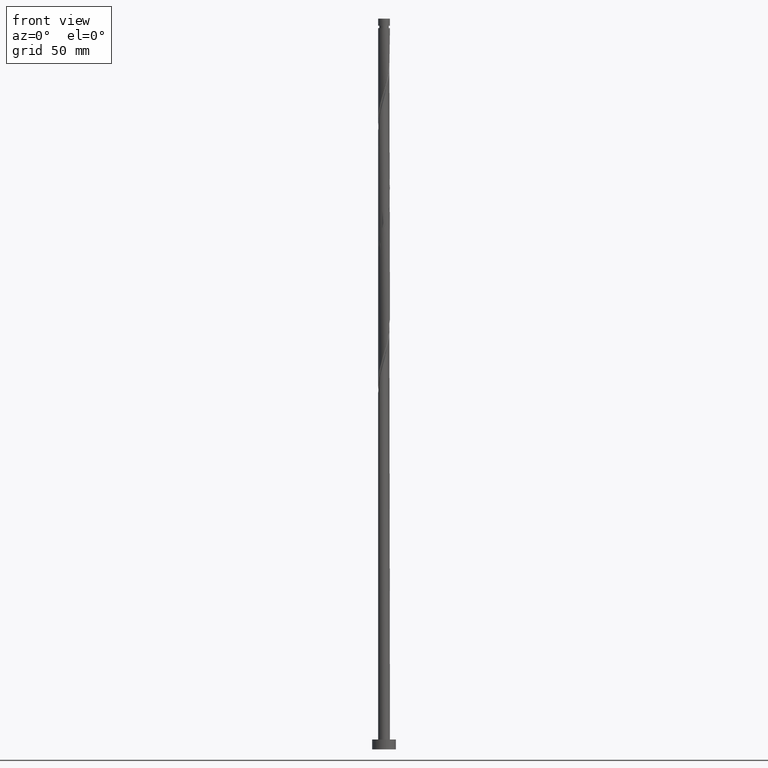
[diagram: clean part render]
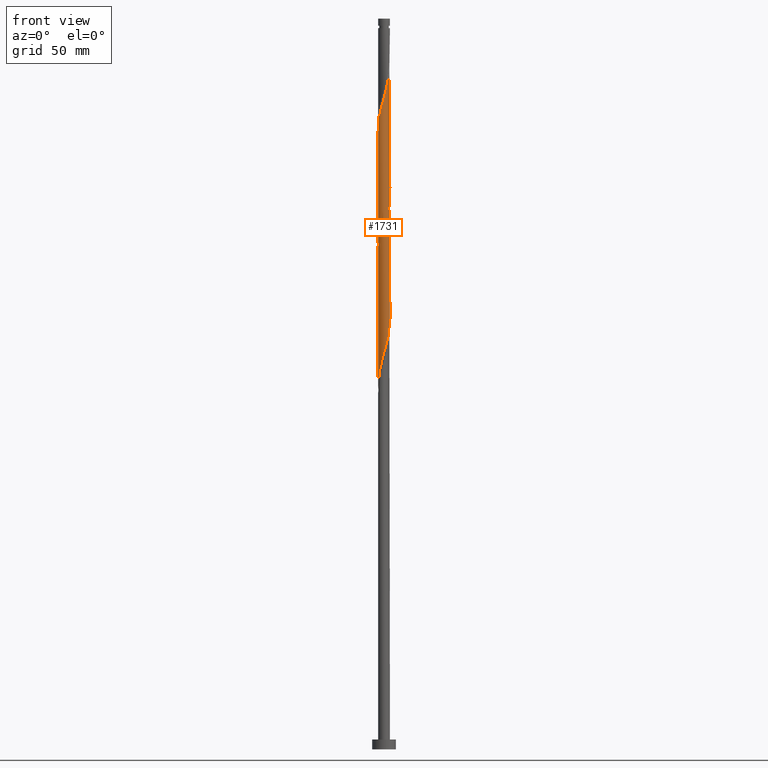
[diagram: same view with one face highlighted and labeled with its STEP entity id]
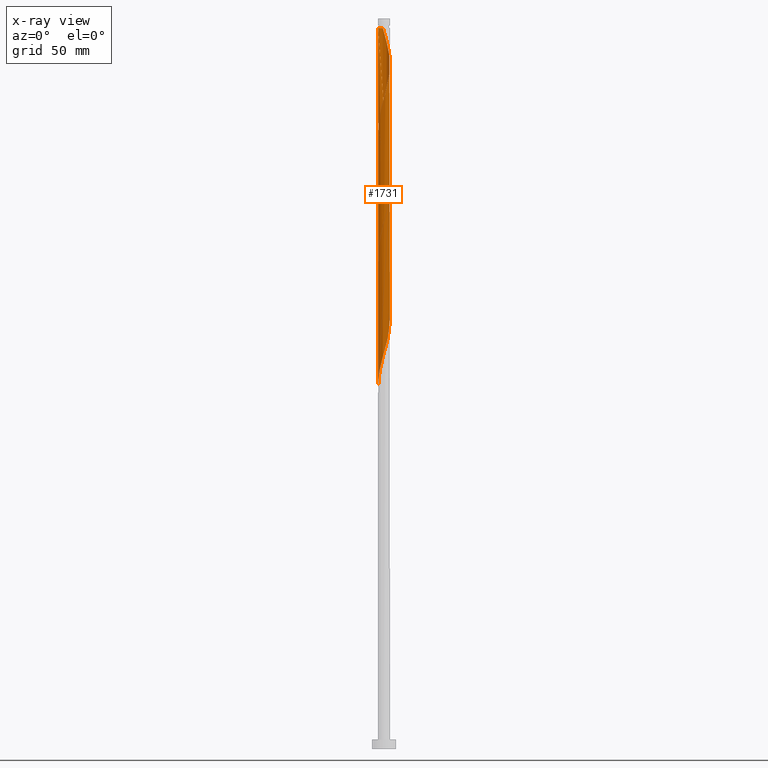
[diagram: x-ray of the same camera — body ghosted, the highlighted face saturated]
A machine part, front view. The second image highlights one B-rep face of the part: STEP entity #1731.
The next image is the same camera in x-ray: the body ghosted, the highlighted face saturated — about 0% of this face is hidden behind the body in this view.
In plain terms, the highlighted cylindrical surface (bore or boss wall) has radius 3 mm, axis along (-0, -0, -1).
Its self-contained STEP definition (entity closure, byte-faithful):
#7 = ORIENTED_EDGE ( 'NONE', *, *, #1015, .F. ) ;
#14 = CARTESIAN_POINT ( 'NONE',  ( 1.195207115623887262, -2.751632233922632675, 334.8271505509903250 ) ) ;
#54 = CARTESIAN_POINT ( 'NONE',  ( 3.000000000000000888, 2.003087666369105967E-15, 284.7303715722896982 ) ) ;
#57 = ORIENTED_EDGE ( 'NONE', *, *, #1578, .T. ) ;
#60 = CARTESIAN_POINT ( 'NONE',  ( -0.3426132633519641257, -2.997004880578674868, 329.2715949954349526 ) ) ;
#74 = CARTESIAN_POINT ( 'NONE',  ( -2.766788993523056739, 1.201790650553047346, 247.0493727732126672 ) ) ;
#75 = CARTESIAN_POINT ( 'NONE',  ( -2.211065689225171660, -2.027606598413809191, 192.6049283287681817 ) ) ;
#80 = CARTESIAN_POINT ( 'NONE',  ( 2.744447700168711535, -1.251970017003503743, 342.6049283287682670 ) ) ;
#82 = CARTESIAN_POINT ( 'NONE',  ( -0.5969924622640976342, 2.940000000000873470, 365.9382616621017519 ) ) ;
#87 = CARTESIAN_POINT ( 'NONE',  ( -1.195207115623887928, -2.751632233922626902, 263.7160394398792960 ) ) ;
#88 = CARTESIAN_POINT ( 'NONE',  ( -0.5969924622639753986, -2.939999999999999503, 199.2715949954348105 ) ) ;
#96 = CARTESIAN_POINT ( 'NONE',  ( 1.741185482790980954, 2.443004935426439150, 228.1604838843237530 ) ) ;
#99 = VERTEX_POINT ( 'NONE', #82 ) ;
#107 = CARTESIAN_POINT ( 'NONE',  ( -3.000000000000000888, -3.303599807966958240E-15, 184.7303715722896982 ) ) ;
#111 = CARTESIAN_POINT ( 'NONE',  ( -2.611625341554437707, 1.476283534877586678, 312.6049283287682101 ) ) ;
#117 = CARTESIAN_POINT ( 'NONE',  ( 2.611625341554437707, -1.476283534877587122, 212.6049283287682101 ) ) ;
#122 = CARTESIAN_POINT ( 'NONE',  ( 2.424175730171095555, 1.795214230025620639, 291.4938172176571243 ) ) ;
#139 = ORIENTED_EDGE ( 'NONE', *, *, #1560, .F. ) ;
#158 = CARTESIAN_POINT ( 'NONE',  ( -2.038775222402708032, -2.223244857174725642, 322.6049283287682670 ) ) ;
#167 = CARTESIAN_POINT ( 'NONE',  ( -2.456461689585825336, -1.750776419202130008, 320.3827061065460384 ) ) ;
#179 = CARTESIAN_POINT ( 'NONE',  ( 2.986297077045553916, 0.2864083930844372738, 348.1604838843237530 ) ) ;
#207 = CARTESIAN_POINT ( 'NONE',  ( -1.997955648279248875, -2.259998966801996634, 260.3827061065460384 ) ) ;
#228 = CARTESIAN_POINT ( 'NONE',  ( 0.3426132633519624604, -2.997004880578670427, 202.6049283287682101 ) ) ;
#231 = CARTESIAN_POINT ( 'NONE',  ( 0.9059989139450662643, 2.877253563794371249, 298.1604838843238099 ) ) ;
#237 = CARTESIAN_POINT ( 'NONE',  ( -0.5969924622639753986, -2.939999999999999503, 265.9382616621014677 ) ) ;
#238 = CARTESIAN_POINT ( 'NONE',  ( 2.247618455994260689, -1.987010638188426048, 210.3827061065459816 ) ) ;
#240 = CARTESIAN_POINT ( 'NONE',  ( 2.980586974261064892, 0.3407363920471027097, 285.9382616621014677 ) ) ;
#241 = CARTESIAN_POINT ( 'NONE',  ( -0.2879860105828837558, 3.002746436205633973, 364.8271505509904955 ) ) ;
#245 = CARTESIAN_POINT ( 'NONE',  ( 1.531984494871650337, -2.598546826576326740, 207.0493727732126956 ) ) ;
#248 = CARTESIAN_POINT ( 'NONE',  ( -1.245111594254570520, 2.729413328510880365, 305.9382616621014677 ) ) ;
#254 = EDGE_CURVE ( 'NONE', #750, #1343, #449, .T. ) ;
#257 = CARTESIAN_POINT ( 'NONE',  ( -2.956194341916738022, 0.6002808636434372458, 315.9382616621015245 ) ) ;
#264 = CARTESIAN_POINT ( 'NONE',  ( 2.986297077045549919, -0.2864083930844409376, 217.0493727732126672 ) ) ;
#267 = CARTESIAN_POINT ( 'NONE',  ( -0.6504259784947260536, 2.928642355512050877, 303.7160394398792391 ) ) ;
#275 = VERTEX_POINT ( 'NONE', #972 ) ;
#282 = DIRECTION ( 'NONE',  ( -0.000000000000000000, -0.000000000000000000, -1.000000000000000000 ) ) ;
#292 = VECTOR ( 'NONE', #609, 1000.000000000000000 ) ;
#300 = CARTESIAN_POINT ( 'NONE',  ( -2.611625341554442148, -1.476283534877588677, 319.2715949954347820 ) ) ;
#330 = EDGE_CURVE ( 'NONE', #275, #99, #1607, .T. ) ;
#344 = CARTESIAN_POINT ( 'NONE',  ( -2.956194341916738022, 0.6002808636434372458, 249.2715949954348673 ) ) ;
#354 = CARTESIAN_POINT ( 'NONE',  ( 2.611625341554437707, -1.476283534877587122, 279.2715949954348389 ) ) ;
#360 = CARTESIAN_POINT ( 'NONE',  ( 3.016399812174366701, -0.02746407747455959295, 347.0493727732126672 ) ) ;
#366 = CARTESIAN_POINT ( 'NONE',  ( -1.785379858637177186, 2.410895841875524859, 241.4938172176570674 ) ) ;
#367 = CARTESIAN_POINT ( 'NONE',  ( 2.766788993523056295, -1.201790650553048900, 213.7160394398792960 ) ) ;
#371 = CARTESIAN_POINT ( 'NONE',  ( -0.02731362638453812067, 2.999875658392149536, 301.4938172176571243 ) ) ;
#376 = CARTESIAN_POINT ( 'NONE',  ( 0.5969924622639755096, 2.939999999999999503, 232.6049283287681817 ) ) ;
#377 = CARTESIAN_POINT ( 'NONE',  ( 2.584311715169900658, 1.523592123514560193, 223.7160394398792107 ) ) ;
#379 = CARTESIAN_POINT ( 'NONE',  ( 1.997955648279249319, 2.259998966801996634, 293.7160394398794665 ) ) ;
#385 = CARTESIAN_POINT ( 'NONE',  ( 2.956194341916738022, -0.6002808636434375789, 282.6049283287682670 ) ) ;
#389 = CARTESIAN_POINT ( 'NONE',  ( 1.741185482790980954, 2.443004935426439150, 294.8271505509903818 ) ) ;
#398 = CARTESIAN_POINT ( 'NONE',  ( 2.584311715169900658, 1.523592123514560193, 290.3827061065459816 ) ) ;
#403 = CARTESIAN_POINT ( 'NONE',  ( -1.195207115623887928, -2.751632233922626902, 197.0493727732126388 ) ) ;
#449 =( BOUNDED_CURVE ( )  B_SPLINE_CURVE ( 2, ( #1839, #1271, #1702, #257, #699, #1127, #111, #1428, #1694, #810, #827, #1711, #248, #1684, #267, #521, #371, #1243, #945, #231, #530, #1137, #389, #379, #957, #122, #398, #834, #964, #661, #240, #559, #691 ),
 .UNSPECIFIED., .F., .T. ) 
 B_SPLINE_CURVE_WITH_KNOTS ( ( 3, 2, 2, 2, 2, 2, 2, 2, 2, 2, 2, 2, 2, 2, 2, 2, 3 ),
 ( 0.4295286012773115170, 0.4333333333333333481, 0.4416666666666666519, 0.4500000000000000111, 0.4583333333333333148, 0.4666666666666666741, 0.4749999999999999778, 0.4833333333333333370, 0.4916666666666666408, 0.5000000000000000000, 0.5083333333333333037, 0.5166666666666667185, 0.5250000000000000222, 0.5333333333333333259, 0.5416666666666666297, 0.5500000000000000444, 0.5545286012773115170 ),
 .UNSPECIFIED. ) 
 CURVE ( )  GEOMETRIC_REPRESENTATION_ITEM ( )  RATIONAL_B_SPLINE_CURVE ( ( 0.9066196499552413579, 0.9068171577856540821, 0.9090909090909530255, 0.9041108139712011882, 0.9090909090909530255, 0.9041108139712011882, 0.9090909090909530255, 0.9041108139712011882, 0.9090909090909530255, 0.9041108139712011882, 0.9090909090909530255, 0.9041108139712011882, 0.9090909090909530255, 0.9041108139712011882, 0.9090909090909530255, 0.9041108139712011882, 0.9090909090909530255, 0.9041108139712011882, 0.9090909090909530255, 0.9041108139712011882, 0.9090909090909530255, 0.9041108139712011882, 0.9090909090909530255, 0.9041108139712011882, 0.9090909090909530255, 0.9041108139712011882, 0.9090909090909530255, 0.9041108139712011882, 0.9090909090909530255, 0.9041108139712011882, 0.9090909090909530255, 0.9063845652765001315, 0.9066196499552412469 ) ) 
 REPRESENTATION_ITEM ( '' )  );
#455 = ORIENTED_EDGE ( 'NONE', *, *, #254, .F. ) ;
#461 = CARTESIAN_POINT ( 'NONE',  ( 0.6504259784947300504, 2.928642355512054873, 361.4938172176570674 ) ) ;
#469 = CARTESIAN_POINT ( 'NONE',  ( 2.980586974261067557, -0.3407363920471047081, 345.9382616621014677 ) ) ;
#471 = ORIENTED_EDGE ( 'NONE', *, *, #1578, .F. ) ;
#497 = CARTESIAN_POINT ( 'NONE',  ( 3.000000000000000444, -0.1435319978602535851, 284.2218230467256603 ) ) ;
#503 = CARTESIAN_POINT ( 'NONE',  ( 0.02731362638454032030, 2.999875658392152644, 363.7160394398791823 ) ) ;
#508 = CARTESIAN_POINT ( 'NONE',  ( -2.456461689585820007, 1.750776419202128453, 244.8271505509904387 ) ) ;
#513 = CARTESIAN_POINT ( 'NONE',  ( 2.844610918258240861, -0.9529893618115777842, 343.7160394398792960 ) ) ;
#516 = CARTESIAN_POINT ( 'NONE',  ( -0.9059989139450648210, -2.877253563794372138, 264.8271505509904387 ) ) ;
#517 = CARTESIAN_POINT ( 'NONE',  ( 2.980586974261064892, 0.3407363920471027097, 219.2715949954348673 ) ) ;
#519 = EDGE_LOOP ( 'NONE', ( #704, #768, #139, #1566, #7, #471, #57, #455 ) ) ;
#521 = CARTESIAN_POINT ( 'NONE',  ( -0.3426132633519627935, 2.997004880578669983, 302.6049283287682670 ) ) ;
#522 = CARTESIAN_POINT ( 'NONE',  ( 1.997955648279250429, -2.259998966802003295, 338.1604838843238099 ) ) ;
#526 = CARTESIAN_POINT ( 'NONE',  ( 0.02731362638453737821, -2.999875658392149536, 268.1604838843237530 ) ) ;
#527 = CARTESIAN_POINT ( 'NONE',  ( 0.02731362638453737821, -2.999875658392149536, 201.4938172176570674 ) ) ;
#530 = CARTESIAN_POINT ( 'NONE',  ( 1.195207115623888372, 2.751632233922626902, 297.0493727732126104 ) ) ;
#537 = LINE ( 'NONE', #1546, #1013 ) ;
#545 = CARTESIAN_POINT ( 'NONE',  ( 0.9582386936374893693, -2.860279830445434879, 204.8271505509904102 ) ) ;
#559 = CARTESIAN_POINT ( 'NONE',  ( 3.000000000000000888, 0.1709212123392932769, 285.3359628816742202 ) ) ;
#594 = CARTESIAN_POINT ( 'NONE',  ( -1.785379858637181183, -2.410895841875527079, 323.7160394398791823 ) ) ;
#601 = CARTESIAN_POINT ( 'NONE',  ( 1.531984494871655889, 2.598546826576329405, 358.1604838843237530 ) ) ;
#609 = DIRECTION ( 'NONE',  ( -0.000000000000000000, -0.000000000000000000, -1.000000000000000000 ) ) ;
#627 = CARTESIAN_POINT ( 'NONE',  ( 0.9582386936374893693, -2.860279830445434879, 271.4938172176570106 ) ) ;
#636 =( BOUNDED_CURVE ( )  B_SPLINE_CURVE ( 2, ( #706, #746, #1746, #1018, #1288, #1610, #300, #167, #875, #158, #594, #885, #1757, #820, #1333, #60, #792, #1666, #1234, #1091, #14, #1820, #1079, #522, #893, #802, #1223, #80, #513, #642, #469, #360, #179, #1178, #1618, #1186, #1653, #1810, #1541, #1368, #1069, #601, #1478, #1766, #461, #1510, #503, #241, #937 ),
 .UNSPECIFIED., .F., .T. ) 
 B_SPLINE_CURVE_WITH_KNOTS ( ( 3, 2, 2, 2, 2, 2, 2, 2, 2, 2, 2, 2, 2, 2, 2, 2, 2, 2, 2, 2, 2, 2, 2, 2, 3 ),
 ( 0.5545286012773114059, 0.5583333333333333481, 0.5666666666666666519, 0.5749999999999999556, 0.5833333333333332593, 0.5916666666666666741, 0.5999999999999999778, 0.6083333333333333925, 0.6166666666666666963, 0.6250000000000000000, 0.6333333333333333037, 0.6416666666666666075, 0.6500000000000000222, 0.6583333333333333259, 0.6666666666666667407, 0.6750000000000000444, 0.6833333333333333481, 0.6916666666666666519, 0.6999999999999999556, 0.7083333333333332593, 0.7166666666666666741, 0.7249999999999999778, 0.7333333333333333925, 0.7416666666666666963, 0.7500000000000000000 ),
 .UNSPECIFIED. ) 
 CURVE ( )  GEOMETRIC_REPRESENTATION_ITEM ( )  RATIONAL_B_SPLINE_CURVE ( ( 0.9066196499552477972, 0.9068171577856605214, 0.9090909090909596868, 0.9041108139712075165, 0.9090909090909596868, 0.9041108139712075165, 0.9090909090909596868, 0.9041108139712075165, 0.9090909090909596868, 0.9041108139712075165, 0.9090909090909596868, 0.9041108139712075165, 0.9090909090909596868, 0.9041108139712075165, 0.9090909090909596868, 0.9041108139712075165, 0.9090909090909596868, 0.9041108139712075165, 0.9090909090909596868, 0.9041108139712075165, 0.9090909090909596868, 0.9041108139712075165, 0.9090909090909596868, 0.9041108139712075165, 0.9090909090909596868, 0.9041108139712075165, 0.9090909090909596868, 0.9041108139712075165, 0.9090909090909596868, 0.9041108139712075165, 0.9090909090909596868, 0.9041108139712075165, 0.9090909090909596868, 0.9041108139712075165, 0.9090909090909596868, 0.9041108139712075165, 0.9090909090909596868, 0.9041108139712075165, 0.9090909090909596868, 0.9041108139712075165, 0.9090909090909596868, 0.9041108139712075165, 0.9090909090909596868, 0.9041108139712075165, 0.9090909090909596868, 0.9041108139712075165, 0.9090909090909596868, 0.9041108139712075165, 0.9090909090909596868 ) ) 
 REPRESENTATION_ITEM ( '' )  );
#642 = CARTESIAN_POINT ( 'NONE',  ( 2.944774136347771520, -0.6540087066196529353, 344.8271505509904955 ) ) ;
#646 = CARTESIAN_POINT ( 'NONE',  ( -1.741185482790979400, -2.443004935426439594, 261.4938172176570106 ) ) ;
#657 = CARTESIAN_POINT ( 'NONE',  ( -0.9582386936374900355, 2.860279830445434879, 238.1604838843237815 ) ) ;
#658 = CARTESIAN_POINT ( 'NONE',  ( -3.000000000000000888, -3.303599807966958240E-15, 184.7303715722896982 ) ) ;
#661 = CARTESIAN_POINT ( 'NONE',  ( 2.944774136347767968, 0.6540087066196476062, 287.0493727732125535 ) ) ;
#666 = CARTESIAN_POINT ( 'NONE',  ( 1.484415317302710147, 2.626010904050883887, 229.2715949954348957 ) ) ;
#667 = CARTESIAN_POINT ( 'NONE',  ( 2.424175730171095555, 1.795214230025620639, 224.8271505509904102 ) ) ;
#676 = CARTESIAN_POINT ( 'NONE',  ( 2.211065689225172104, 2.027606598413809191, 225.9382616621015245 ) ) ;
#687 = CARTESIAN_POINT ( 'NONE',  ( 0.6504259784947251655, -2.928642355512051321, 203.7160394398792675 ) ) ;
#691 = CARTESIAN_POINT ( 'NONE',  ( 3.000000000000000888, 2.003087666369105967E-15, 284.7303715722896982 ) ) ;
#696 = CARTESIAN_POINT ( 'NONE',  ( 2.038775222402703591, -2.223244857174723421, 209.2715949954348105 ) ) ;
#699 = CARTESIAN_POINT ( 'NONE',  ( -2.861491667719896714, 0.9010357570982424624, 314.8271505509903818 ) ) ;
#704 = ORIENTED_EDGE ( 'NONE', *, *, #1238, .F. ) ;
#706 = CARTESIAN_POINT ( 'NONE',  ( -3.000000000000005329, -1.435047880383826885E-15, 313.8128184185799796 ) ) ;
#735 = CARTESIAN_POINT ( 'NONE',  ( 3.000000000000000444, 3.673940397442060361E-16, 365.9382616621017519 ) ) ;
#746 = CARTESIAN_POINT ( 'NONE',  ( -3.000000000000005329, -0.1435319978602466184, 314.3213669441440743 ) ) ;
#750 = VERTEX_POINT ( 'NONE', #1391 ) ;
#763 = CYLINDRICAL_SURFACE ( 'NONE', #1654, 3.000000000000000444 ) ;
#768 = ORIENTED_EDGE ( 'NONE', *, *, #330, .T. ) ;
#777 = CARTESIAN_POINT ( 'NONE',  ( 1.785379858637176742, -2.410895841875525303, 274.8271505509903250 ) ) ;
#786 = CARTESIAN_POINT ( 'NONE',  ( -2.986297077045549919, 0.2864083930844401049, 250.3827061065460100 ) ) ;
#792 = CARTESIAN_POINT ( 'NONE',  ( -0.02731362638453989355, -2.999875658392152644, 330.3827061065459247 ) ) ;
#796 = CARTESIAN_POINT ( 'NONE',  ( 2.986297077045549919, -0.2864083930844409376, 283.7160394398794097 ) ) ;
#802 = CARTESIAN_POINT ( 'NONE',  ( 2.424175730171097776, -1.795214230025627078, 340.3827061065459816 ) ) ;
#805 = CARTESIAN_POINT ( 'NONE',  ( 1.245111594254570075, -2.729413328510880365, 272.6049283287682670 ) ) ;
#806 = CARTESIAN_POINT ( 'NONE',  ( -2.424175730171094667, -1.795214230025622193, 191.4938172176570390 ) ) ;
#807 = VECTOR ( 'NONE', #282, 1000.000000000000000 ) ;
#810 = CARTESIAN_POINT ( 'NONE',  ( -2.038775222402704479, 2.223244857174722977, 309.2715949954348389 ) ) ;
#815 = CARTESIAN_POINT ( 'NONE',  ( -2.584311715169900214, -1.523592123514560193, 257.0493727732126104 ) ) ;
#816 = CARTESIAN_POINT ( 'NONE',  ( 1.785379858637176742, -2.410895841875525303, 208.1604838843236678 ) ) ;
#820 = CARTESIAN_POINT ( 'NONE',  ( -0.9582386936374928110, -2.860279830445438876, 327.0493727732126672 ) ) ;
#824 = CARTESIAN_POINT ( 'NONE',  ( -1.484415317302709703, -2.626010904050883887, 195.9382616621015529 ) ) ;
#827 = CARTESIAN_POINT ( 'NONE',  ( -1.785379858637177186, 2.410895841875524859, 308.1604838843236962 ) ) ;
#834 = CARTESIAN_POINT ( 'NONE',  ( 2.744447700168706650, 1.251970017003499747, 289.2715949954348957 ) ) ;
#839 = CARTESIAN_POINT ( 'NONE',  ( 1.245111594254570075, -2.729413328510880365, 205.9382616621015245 ) ) ;
#875 = CARTESIAN_POINT ( 'NONE',  ( -2.247618455994266018, -1.987010638188426936, 321.4938172176571243 ) ) ;
#885 = CARTESIAN_POINT ( 'NONE',  ( -1.531984494871654556, -2.598546826576331625, 324.8271505509904955 ) ) ;
#893 = CARTESIAN_POINT ( 'NONE',  ( 2.211065689225173880, -2.027606598413812744, 339.2715949954348389 ) ) ;
#923 = CARTESIAN_POINT ( 'NONE',  ( 2.456461689585818231, -1.750776419202130230, 278.1604838843236962 ) ) ;
#932 = CARTESIAN_POINT ( 'NONE',  ( -2.424175730171094667, -1.795214230025622193, 258.1604838843237530 ) ) ;
#937 = CARTESIAN_POINT ( 'NONE',  ( -0.5969924622640977452, 2.940000000000873914, 365.9382616621017519 ) ) ;
#940 = CARTESIAN_POINT ( 'NONE',  ( -1.245111594254570520, 2.729413328510880365, 239.2715949954348389 ) ) ;
#941 = CARTESIAN_POINT ( 'NONE',  ( -1.741185482790979400, -2.443004935426439594, 194.8271505509904102 ) ) ;
#945 = CARTESIAN_POINT ( 'NONE',  ( 0.5969924622639755096, 2.939999999999999503, 299.2715949954347820 ) ) ;
#951 = CARTESIAN_POINT ( 'NONE',  ( -1.531984494871651226, 2.598546826576326740, 240.3827061065459532 ) ) ;
#952 = CARTESIAN_POINT ( 'NONE',  ( 2.744447700168706650, 1.251970017003499747, 222.6049283287681817 ) ) ;
#957 = CARTESIAN_POINT ( 'NONE',  ( 2.211065689225172104, 2.027606598413809191, 292.6049283287681533 ) ) ;
#961 = CARTESIAN_POINT ( 'NONE',  ( 2.247618455994260689, -1.987010638188426048, 277.0493727732126104 ) ) ;
#962 = CARTESIAN_POINT ( 'NONE',  ( -2.744447700168706650, -1.251970017003500413, 189.2715949954348673 ) ) ;
#964 = CARTESIAN_POINT ( 'NONE',  ( 2.844610918258237309, 0.9529893618115726772, 288.1604838843237530 ) ) ;
#972 = CARTESIAN_POINT ( 'NONE',  ( -2.999999999999968026, 0.000000000000000000, 365.9382616621015245 ) ) ;
#977 = CARTESIAN_POINT ( 'NONE',  ( -2.980586974261064892, -0.3407363920471030427, 185.9382616621014961 ) ) ;
#998 = CARTESIAN_POINT ( 'NONE',  ( 3.000000000000000888, 2.003087666369105967E-15, 284.7303715722896982 ) ) ;
#1013 = VECTOR ( 'NONE', #1257, 1000.000000000000000 ) ;
#1015 = EDGE_CURVE ( 'NONE', #1343, #1151, #1751, .T. ) ;
#1018 = CARTESIAN_POINT ( 'NONE',  ( -2.956194341916742907, -0.6002808636434371348, 315.9382616621015814 ) ) ;
#1021 = FACE_OUTER_BOUND ( 'NONE', #519, .T. ) ;
#1060 = EDGE_CURVE ( 'NONE', #1863, #1151, #537, .T. ) ;
#1064 = CARTESIAN_POINT ( 'NONE',  ( -2.744447700168706650, -1.251970017003500413, 255.9382616621016098 ) ) ;
#1069 = CARTESIAN_POINT ( 'NONE',  ( 1.785379858637181627, 2.410895841875527079, 357.0493727732126104 ) ) ;
#1074 = CARTESIAN_POINT ( 'NONE',  ( 2.766788993523056295, -1.201790650553048900, 280.3827061065460384 ) ) ;
#1079 = CARTESIAN_POINT ( 'NONE',  ( 1.741185482790979400, -2.443004935426445368, 337.0493727732125535 ) ) ;
#1082 = CARTESIAN_POINT ( 'NONE',  ( 2.038775222402703591, -2.223244857174723421, 275.9382616621016382 ) ) ;
#1083 = CARTESIAN_POINT ( 'NONE',  ( 2.956194341916738022, -0.6002808636434375789, 215.9382616621015245 ) ) ;
#1091 = CARTESIAN_POINT ( 'NONE',  ( 0.9059989139450637108, -2.877253563794377911, 333.7160394398792960 ) ) ;
#1094 = CARTESIAN_POINT ( 'NONE',  ( 0.2879860105828862538, 3.002746436205628644, 233.7160394398793528 ) ) ;
#1102 = CARTESIAN_POINT ( 'NONE',  ( -2.844610918258237309, -0.9529893618115740095, 254.8271505509903534 ) ) ;
#1103 = CARTESIAN_POINT ( 'NONE',  ( -3.000000000000000444, -0.1709212123392986338, 185.3359628816742486 ) ) ;
#1112 = CARTESIAN_POINT ( 'NONE',  ( -1.997955648279248875, -2.259998966801996634, 193.7160394398792960 ) ) ;
#1127 = CARTESIAN_POINT ( 'NONE',  ( -2.766788993523056739, 1.201790650553047346, 313.7160394398792960 ) ) ;
#1137 = CARTESIAN_POINT ( 'NONE',  ( 1.484415317302710147, 2.626010904050883887, 295.9382616621015245 ) ) ;
#1151 = VERTEX_POINT ( 'NONE', #107 ) ;
#1178 = CARTESIAN_POINT ( 'NONE',  ( 2.956194341916742907, 0.6002808636434368017, 349.2715949954349526 ) ) ;
#1182 = CARTESIAN_POINT ( 'NONE',  ( 0.000000000000000000, 0.000000000000000000, 370.7099999999999795 ) ) ;
#1186 = CARTESIAN_POINT ( 'NONE',  ( 2.766788993523062956, 1.201790650553046236, 351.4938172176571243 ) ) ;
#1190 = DIRECTION ( 'NONE',  ( -0.000000000000000000, -0.000000000000000000, -1.000000000000000000 ) ) ;
#1199 = VERTEX_POINT ( 'NONE', #735 ) ;
#1209 = CARTESIAN_POINT ( 'NONE',  ( 0.3426132633519624604, -2.997004880578670427, 269.2715949954348389 ) ) ;
#1223 = CARTESIAN_POINT ( 'NONE',  ( 2.584311715169902879, -1.523592123514564634, 341.4938172176568969 ) ) ;
#1229 = CARTESIAN_POINT ( 'NONE',  ( -2.211065689225171660, -2.027606598413809191, 259.2715949954347820 ) ) ;
#1234 = CARTESIAN_POINT ( 'NONE',  ( 0.5969924622639748435, -2.940000000000003944, 332.6049283287682101 ) ) ;
#1238 = EDGE_CURVE ( 'NONE', #275, #750, #1315, .T. ) ;
#1239 = CARTESIAN_POINT ( 'NONE',  ( -0.6504259784947260536, 2.928642355512050877, 237.0493727732126388 ) ) ;
#1243 = CARTESIAN_POINT ( 'NONE',  ( 0.2879860105828862538, 3.002746436205628644, 300.3827061065459816 ) ) ;
#1248 = CARTESIAN_POINT ( 'NONE',  ( 1.531984494871650337, -2.598546826576326740, 273.7160394398792960 ) ) ;
#1249 = CARTESIAN_POINT ( 'NONE',  ( -2.844610918258237309, -0.9529893618115740095, 188.1604838843237246 ) ) ;
#1257 = DIRECTION ( 'NONE',  ( -0.000000000000000000, -0.000000000000000000, -1.000000000000000000 ) ) ;
#1267 = CARTESIAN_POINT ( 'NONE',  ( -0.2879860105828874750, -3.002746436205629088, 200.3827061065459532 ) ) ;
#1271 = CARTESIAN_POINT ( 'NONE',  ( -3.000000000000001332, 0.1435319978602531965, 317.5551563800590316 ) ) ;
#1277 = CARTESIAN_POINT ( 'NONE',  ( 3.016399812174360484, 0.02746407747455526308, 218.1604838843237815 ) ) ;
#1281 = CARTESIAN_POINT ( 'NONE',  ( 0.000000000000000000, 0.000000000000000000, 365.9382616621015245 ) ) ;
#1288 = CARTESIAN_POINT ( 'NONE',  ( -2.861491667719902487, -0.9010357570982423514, 317.0493727732124398 ) ) ;
#1315 = LINE ( 'NONE', #1739, #807 ) ;
#1329 = DIRECTION ( 'NONE',  ( -1.000000000000000000, 0.000000000000000000, 0.000000000000000000 ) ) ;
#1333 = CARTESIAN_POINT ( 'NONE',  ( -0.6504259784947286072, -2.928642355512055317, 328.1604838843236394 ) ) ;
#1343 = VERTEX_POINT ( 'NONE', #998 ) ;
#1362 = CARTESIAN_POINT ( 'NONE',  ( -0.2879860105828874750, -3.002746436205629088, 267.0493727732126672 ) ) ;
#1363 = AXIS2_PLACEMENT_3D ( 'NONE', #1281, #1418, #1866 ) ;
#1368 = CARTESIAN_POINT ( 'NONE',  ( 2.038775222402708032, 2.223244857174725642, 355.9382616621016382 ) ) ;
#1372 = CARTESIAN_POINT ( 'NONE',  ( 2.861491667719896714, -0.9010357570982441278, 281.4938172176571243 ) ) ;
#1380 = LINE ( 'NONE', #1521, #292 ) ;
#1386 = CARTESIAN_POINT ( 'NONE',  ( -2.944774136347767968, -0.6540087066196483834, 253.7160394398793528 ) ) ;
#1387 = CARTESIAN_POINT ( 'NONE',  ( -2.944774136347767968, -0.6540087066196483834, 187.0493727732126956 ) ) ;
#1391 = CARTESIAN_POINT ( 'NONE',  ( -3.000000000000000888, -1.375254218701177243E-15, 318.0637049056230126 ) ) ;
#1395 = CARTESIAN_POINT ( 'NONE',  ( 1.195207115623888372, 2.751632233922626902, 230.3827061065459532 ) ) ;
#1396 = CARTESIAN_POINT ( 'NONE',  ( -0.9059989139450648210, -2.877253563794372138, 198.1604838843237530 ) ) ;
#1418 = DIRECTION ( 'NONE',  ( -0.000000000000000000, -0.000000000000000000, -1.000000000000000000 ) ) ;
#1428 = CARTESIAN_POINT ( 'NONE',  ( -2.456461689585820007, 1.750776419202128453, 311.4938172176570674 ) ) ;
#1478 = CARTESIAN_POINT ( 'NONE',  ( 1.245111594254573406, 2.729413328510883474, 359.2715949954348389 ) ) ;
#1506 = CARTESIAN_POINT ( 'NONE',  ( -2.861491667719896714, 0.9010357570982424624, 248.1604838843237530 ) ) ;
#1510 = CARTESIAN_POINT ( 'NONE',  ( 0.3426132633519645143, 2.997004880578675312, 362.6049283287682670 ) ) ;
#1514 = CARTESIAN_POINT ( 'NONE',  ( -2.611625341554437707, 1.476283534877586678, 245.9382616621015529 ) ) ;
#1521 = CARTESIAN_POINT ( 'NONE',  ( 3.000000000000000444, 3.673940397442060361E-16, 370.7099999999999795 ) ) ;
#1524 = CARTESIAN_POINT ( 'NONE',  ( 0.6504259784947251655, -2.928642355512051321, 270.3827061065459816 ) ) ;
#1525 = CARTESIAN_POINT ( 'NONE',  ( -2.584311715169900214, -1.523592123514560193, 190.3827061065459532 ) ) ;
#1536 = CARTESIAN_POINT ( 'NONE',  ( 0.9059989139450662643, 2.877253563794371249, 231.4938172176570674 ) ) ;
#1537 = CARTESIAN_POINT ( 'NONE',  ( 2.844610918258237309, 0.9529893618115726772, 221.4938172176570959 ) ) ;
#1541 = CARTESIAN_POINT ( 'NONE',  ( 2.247618455994266906, 1.987010638188425604, 354.8271505509903818 ) ) ;
#1546 = CARTESIAN_POINT ( 'NONE',  ( -3.000000000000000444, 0.000000000000000000, 370.7099999999999795 ) ) ;
#1554 = CARTESIAN_POINT ( 'NONE',  ( 2.456461689585818231, -1.750776419202130230, 211.4938172176571811 ) ) ;
#1556 = CARTESIAN_POINT ( 'NONE',  ( -3.000000000000005329, -1.435047880383826885E-15, 313.8128184185799796 ) ) ;
#1560 = EDGE_CURVE ( 'NONE', #1863, #99, #636, .T. ) ;
#1566 = ORIENTED_EDGE ( 'NONE', *, *, #1060, .T. ) ;
#1578 = EDGE_CURVE ( 'NONE', #1199, #1343, #1380, .T. ) ;
#1607 = CIRCLE ( 'NONE', #1363, 2.999999999999968026 ) ;
#1610 = CARTESIAN_POINT ( 'NONE',  ( -2.766788993523062512, -1.201790650553048012, 318.1604838843236962 ) ) ;
#1618 = CARTESIAN_POINT ( 'NONE',  ( 2.861491667719902487, 0.9010357570982412412, 350.3827061065458679 ) ) ;
#1647 = CARTESIAN_POINT ( 'NONE',  ( -2.980586974261064892, -0.3407363920471030427, 252.6049283287681249 ) ) ;
#1653 = CARTESIAN_POINT ( 'NONE',  ( 2.611625341554442148, 1.476283534877588455, 352.6049283287680396 ) ) ;
#1654 = AXIS2_PLACEMENT_3D ( 'NONE', #1182, #1190, #1329 ) ;
#1666 = CARTESIAN_POINT ( 'NONE',  ( 0.2879860105828854766, -3.002746436205633529, 331.4938172176570674 ) ) ;
#1671 = CARTESIAN_POINT ( 'NONE',  ( -2.038775222402704479, 2.223244857174722977, 242.6049283287681817 ) ) ;
#1672 = CARTESIAN_POINT ( 'NONE',  ( 2.861491667719896714, -0.9010357570982441278, 214.8271505509904102 ) ) ;
#1681 = CARTESIAN_POINT ( 'NONE',  ( -2.247618455994261577, 1.987010638188425382, 243.7160394398792960 ) ) ;
#1684 = CARTESIAN_POINT ( 'NONE',  ( -0.9582386936374900355, 2.860279830445434879, 304.8271505509904387 ) ) ;
#1694 = CARTESIAN_POINT ( 'NONE',  ( -2.247618455994261577, 1.987010638188425382, 310.3827061065459247 ) ) ;
#1702 = CARTESIAN_POINT ( 'NONE',  ( -2.986297077045549919, 0.2864083930844401049, 317.0493727732126104 ) ) ;
#1711 = CARTESIAN_POINT ( 'NONE',  ( -1.531984494871651226, 2.598546826576326740, 307.0493727732127240 ) ) ;
#1731 = ADVANCED_FACE ( 'NONE', ( #1021 ), #763, .T. ) ;
#1739 = CARTESIAN_POINT ( 'NONE',  ( -3.000000000000000444, 0.000000000000000000, 370.7099999999999795 ) ) ;
#1746 = CARTESIAN_POINT ( 'NONE',  ( -2.986297077045553916, -0.2864083930844388837, 314.8271505509903818 ) ) ;
#1751 =( BOUNDED_CURVE ( )  B_SPLINE_CURVE ( 2, ( #54, #497, #796, #385, #1372, #1074, #354, #923, #961, #1082, #777, #1248, #805, #627, #1524, #1209, #526, #1362, #237, #516, #87, #1794, #646, #207, #1229, #932, #815, #1064, #1102, #1386, #1647, #1815, #786, #344, #1506, #74, #1514, #508, #1681, #1671, #366, #951, #940, #657, #1239, #1825, #1834, #1094, #376, #1536, #1395, #666, #96, #1835, #676, #667, #377, #952, #1537, #1862, #517, #1277, #264, #1083, #1672, #367, #117, #1554, #238, #696, #816, #245, #839, #545, #687, #228, #527, #1267, #88, #1396, #403, #824, #941, #1112, #75, #806, #1525, #962, #1249, #1387, #977, #1103, #658 ),
 .UNSPECIFIED., .F., .T. ) 
 B_SPLINE_CURVE_WITH_KNOTS ( ( 3, 2, 2, 2, 2, 2, 2, 2, 2, 2, 2, 2, 2, 2, 2, 2, 2, 2, 2, 2, 2, 2, 2, 2, 2, 2, 2, 2, 2, 2, 2, 2, 2, 2, 2, 2, 2, 2, 2, 2, 2, 2, 2, 2, 2, 2, 3 ),
 ( 0.5545286012773115170, 0.5583333333333333481, 0.5666666666666666519, 0.5749999999999999556, 0.5833333333333333703, 0.5916666666666666741, 0.5999999999999999778, 0.6083333333333332815, 0.6166666666666666963, 0.6250000000000000000, 0.6333333333333333037, 0.6416666666666667185, 0.6500000000000000222, 0.6583333333333333259, 0.6666666666666666297, 0.6750000000000000444, 0.6833333333333333481, 0.6916666666666666519, 0.6999999999999999556, 0.7083333333333333703, 0.7166666666666666741, 0.7249999999999999778, 0.7333333333333332815, 0.7416666666666666963, 0.7500000000000000000, 0.7583333333333333037, 0.7666666666666667185, 0.7750000000000000222, 0.7833333333333333259, 0.7916666666666666297, 0.8000000000000000444, 0.8083333333333333481, 0.8166666666666666519, 0.8249999999999999556, 0.8333333333333333703, 0.8416666666666666741, 0.8499999999999999778, 0.8583333333333332815, 0.8666666666666666963, 0.8750000000000000000, 0.8833333333333333037, 0.8916666666666667185, 0.9000000000000001332, 0.9083333333333334370, 0.9166666666666667407, 0.9250000000000000444, 0.9295286012773114059 ),
 .UNSPECIFIED. ) 
 CURVE ( )  GEOMETRIC_REPRESENTATION_ITEM ( )  RATIONAL_B_SPLINE_CURVE ( ( 0.9066196499552412469, 0.9068171577856540821, 0.9090909090909530255, 0.9041108139712011882, 0.9090909090909530255, 0.9041108139712011882, 0.9090909090909530255, 0.9041108139712011882, 0.9090909090909530255, 0.9041108139712011882, 0.9090909090909530255, 0.9041108139712011882, 0.9090909090909530255, 0.9041108139712011882, 0.9090909090909530255, 0.9041108139712011882, 0.9090909090909530255, 0.9041108139712011882, 0.9090909090909530255, 0.9041108139712011882, 0.9090909090909530255, 0.9041108139712011882, 0.9090909090909530255, 0.9041108139712011882, 0.9090909090909530255, 0.9041108139712011882, 0.9090909090909530255, 0.9041108139712011882, 0.9090909090909530255, 0.9041108139712011882, 0.9090909090909530255, 0.9041108139712011882, 0.9090909090909530255, 0.9041108139712011882, 0.9090909090909530255, 0.9041108139712011882, 0.9090909090909530255, 0.9041108139712011882, 0.9090909090909530255, 0.9041108139712011882, 0.9090909090909530255, 0.9041108139712011882, 0.9090909090909530255, 0.9041108139712011882, 0.9090909090909530255, 0.9041108139712011882, 0.9090909090909530255, 0.9041108139712011882, 0.9090909090909530255, 0.9041108139712011882, 0.9090909090909530255, 0.9041108139712011882, 0.9090909090909530255, 0.9041108139712011882, 0.9090909090909530255, 0.9041108139712011882, 0.9090909090909530255, 0.9041108139712011882, 0.9090909090909530255, 0.9041108139712011882, 0.9090909090909530255, 0.9041108139712011882, 0.9090909090909530255, 0.9041108139712011882, 0.9090909090909530255, 0.9041108139712011882, 0.9090909090909530255, 0.9041108139712011882, 0.9090909090909530255, 0.9041108139712011882, 0.9090909090909530255, 0.9041108139712011882, 0.9090909090909530255, 0.9041108139712011882, 0.9090909090909530255, 0.9041108139712011882, 0.9090909090909530255, 0.9041108139712011882, 0.9090909090909530255, 0.9041108139712011882, 0.9090909090909530255, 0.9041108139712011882, 0.9090909090909530255, 0.9041108139712011882, 0.9090909090909530255, 0.9041108139712011882, 0.9090909090909530255, 0.9041108139712011882, 0.9090909090909530255, 0.9041108139712011882, 0.9090909090909530255, 0.9063845652765001315, 0.9066196499552413579 ) ) 
 REPRESENTATION_ITEM ( '' )  );
#1757 = CARTESIAN_POINT ( 'NONE',  ( -1.245111594254572962, -2.729413328510883474, 325.9382616621014108 ) ) ;
#1766 = CARTESIAN_POINT ( 'NONE',  ( 0.9582386936374933661, 2.860279830445438876, 360.3827061065460384 ) ) ;
#1794 = CARTESIAN_POINT ( 'NONE',  ( -1.484415317302709703, -2.626010904050883887, 262.6049283287682101 ) ) ;
#1810 = CARTESIAN_POINT ( 'NONE',  ( 2.456461689585825781, 1.750776419202128897, 353.7160394398792960 ) ) ;
#1815 = CARTESIAN_POINT ( 'NONE',  ( -3.016399812174361372, -0.02746407747455717821, 251.4938172176570674 ) ) ;
#1820 = CARTESIAN_POINT ( 'NONE',  ( 1.484415317302711257, -2.626010904050889216, 335.9382616621015245 ) ) ;
#1825 = CARTESIAN_POINT ( 'NONE',  ( -0.3426132633519627935, 2.997004880578669983, 235.9382616621015529 ) ) ;
#1834 = CARTESIAN_POINT ( 'NONE',  ( -0.02731362638453812067, 2.999875658392149536, 234.8271505509904671 ) ) ;
#1835 = CARTESIAN_POINT ( 'NONE',  ( 1.997955648279249319, 2.259998966801996634, 227.0493727732126388 ) ) ;
#1839 = CARTESIAN_POINT ( 'NONE',  ( -3.000000000000000888, -1.375254218701177046E-15, 318.0637049056230126 ) ) ;
#1862 = CARTESIAN_POINT ( 'NONE',  ( 2.944774136347767968, 0.6540087066196476062, 220.3827061065460100 ) ) ;
#1863 = VERTEX_POINT ( 'NONE', #1556 ) ;
#1866 = DIRECTION ( 'NONE',  ( -1.000000000000000000, 0.000000000000000000, 0.000000000000000000 ) ) ;